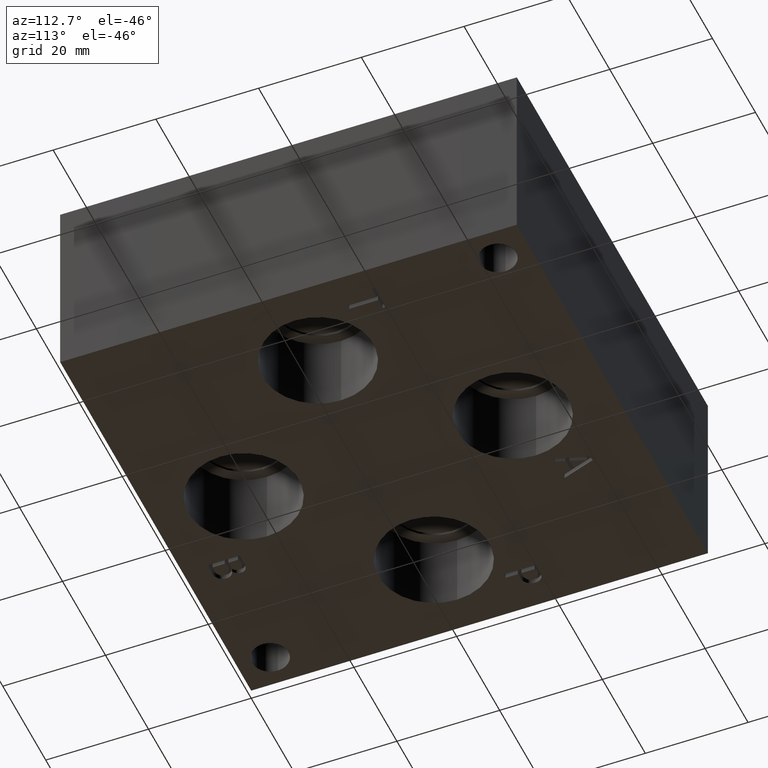
[diagram: clean part render]
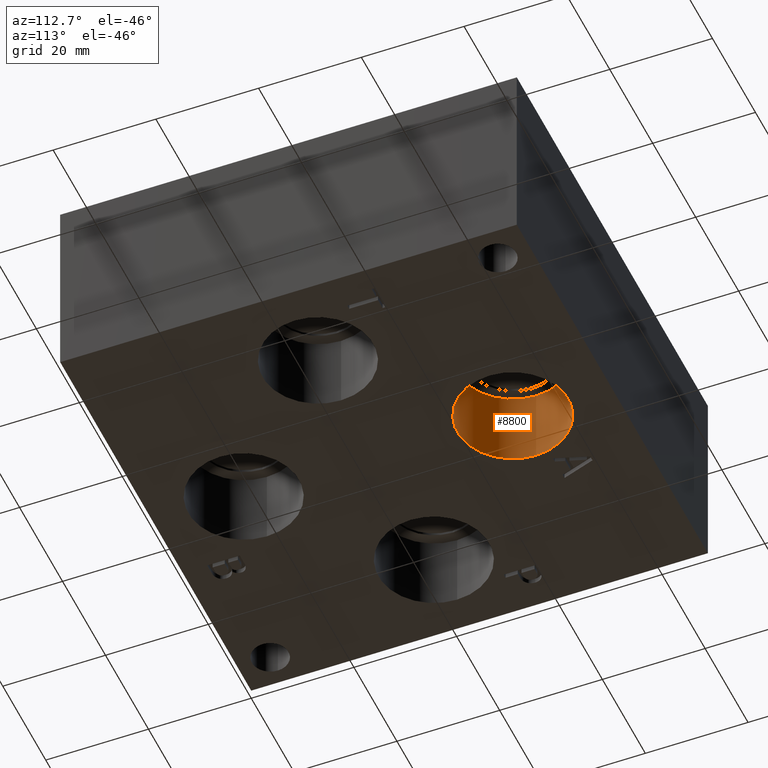
[diagram: same view with one face highlighted and labeled with its STEP entity id]
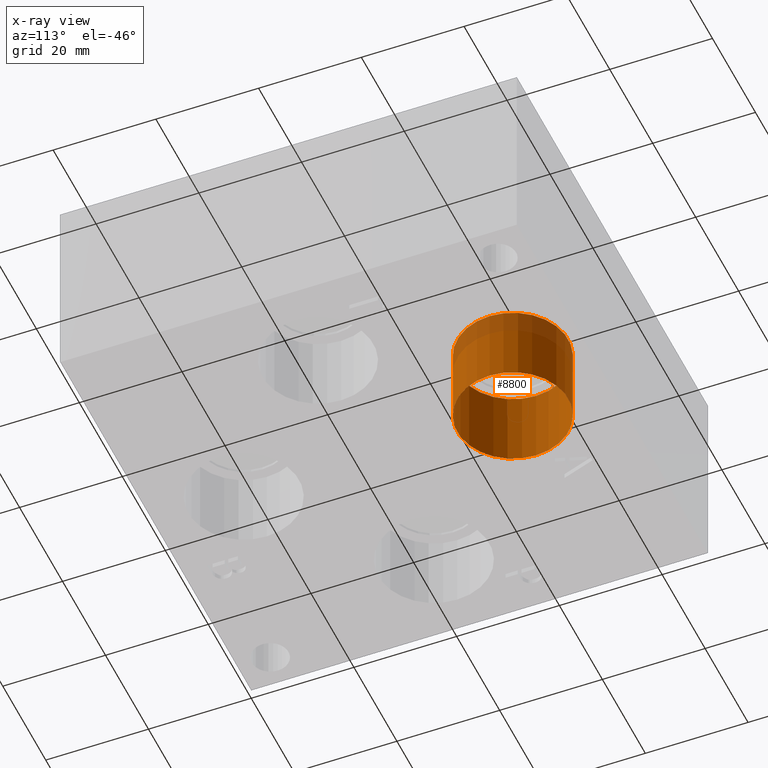
[diagram: x-ray of the same camera — body ghosted, the highlighted face saturated]
A machine part, auxiliary view. The second image highlights one B-rep face of the part: STEP entity #8800.
The next image is the same camera in x-ray: the body ghosted, the highlighted face saturated — about 16% of this face is hidden behind the body in this view.
In plain terms, the highlighted cylindrical surface (bore or boss wall) has radius 10.795 mm, axis along (0, 0, -1).
Its self-contained STEP definition (entity closure, byte-faithful):
#16=CYLINDRICAL_SURFACE('',#9149,10.795);
#54=CIRCLE('',#8874,10.795);
#55=CIRCLE('',#8875,10.795);
#69=CIRCLE('',#9146,10.795);
#70=CIRCLE('',#9147,10.795);
#882=FACE_OUTER_BOUND('',#1376,.T.);
#1376=EDGE_LOOP('',(#7645,#7646,#7647,#7648,#7649,#7650));
#2260=LINE('',#14923,#3116);
#3116=VECTOR('',#10660,10.795);
#3469=VERTEX_POINT('',#11160);
#3470=VERTEX_POINT('',#11161);
#4164=VERTEX_POINT('',#14916);
#4165=VERTEX_POINT('',#14917);
#4310=EDGE_CURVE('',#3469,#3470,#54,.T.);
#4311=EDGE_CURVE('',#3470,#3469,#55,.T.);
#5350=EDGE_CURVE('',#4164,#4165,#69,.T.);
#5351=EDGE_CURVE('',#4165,#4164,#70,.T.);
#5353=EDGE_CURVE('',#3470,#4165,#2260,.T.);
#7645=ORIENTED_EDGE('',*,*,#4310,.F.);
#7646=ORIENTED_EDGE('',*,*,#4311,.F.);
#7647=ORIENTED_EDGE('',*,*,#5353,.T.);
#7648=ORIENTED_EDGE('',*,*,#5350,.F.);
#7649=ORIENTED_EDGE('',*,*,#5351,.F.);
#7650=ORIENTED_EDGE('',*,*,#5353,.F.);
#8800=ADVANCED_FACE('',(#882),#16,.F.);
#8874=AXIS2_PLACEMENT_3D('',#11162,#9335,#9336);
#8875=AXIS2_PLACEMENT_3D('',#11163,#9337,#9338);
#9146=AXIS2_PLACEMENT_3D('',#14918,#10652,#10653);
#9147=AXIS2_PLACEMENT_3D('',#14919,#10654,#10655);
#9149=AXIS2_PLACEMENT_3D('',#14922,#10658,#10659);
#9335=DIRECTION('center_axis',(0.,0.,1.));
#9336=DIRECTION('ref_axis',(1.,0.,0.));
#9337=DIRECTION('center_axis',(0.,0.,1.));
#9338=DIRECTION('ref_axis',(1.,0.,0.));
#10652=DIRECTION('center_axis',(0.,0.,-1.));
#10653=DIRECTION('ref_axis',(1.,0.,0.));
#10654=DIRECTION('center_axis',(0.,0.,-1.));
#10655=DIRECTION('ref_axis',(1.,0.,0.));
#10658=DIRECTION('center_axis',(0.,0.,-1.));
#10659=DIRECTION('ref_axis',(1.,0.,0.));
#10660=DIRECTION('',(0.,0.,1.));
#11160=CARTESIAN_POINT('',(56.0324,69.85,0.));
#11161=CARTESIAN_POINT('',(34.4424,69.85,0.));
#11162=CARTESIAN_POINT('Origin',(45.2374,69.85,0.));
#11163=CARTESIAN_POINT('Origin',(45.2374,69.85,0.));
#14916=CARTESIAN_POINT('',(56.0324,69.85,15.367));
#14917=CARTESIAN_POINT('',(34.4424,69.85,15.367));
#14918=CARTESIAN_POINT('Origin',(45.2374,69.85,15.367));
#14919=CARTESIAN_POINT('Origin',(45.2374,69.85,15.367));
#14922=CARTESIAN_POINT('Origin',(45.2374,69.85,7.6835));
#14923=CARTESIAN_POINT('',(34.4424,69.85,7.6835));